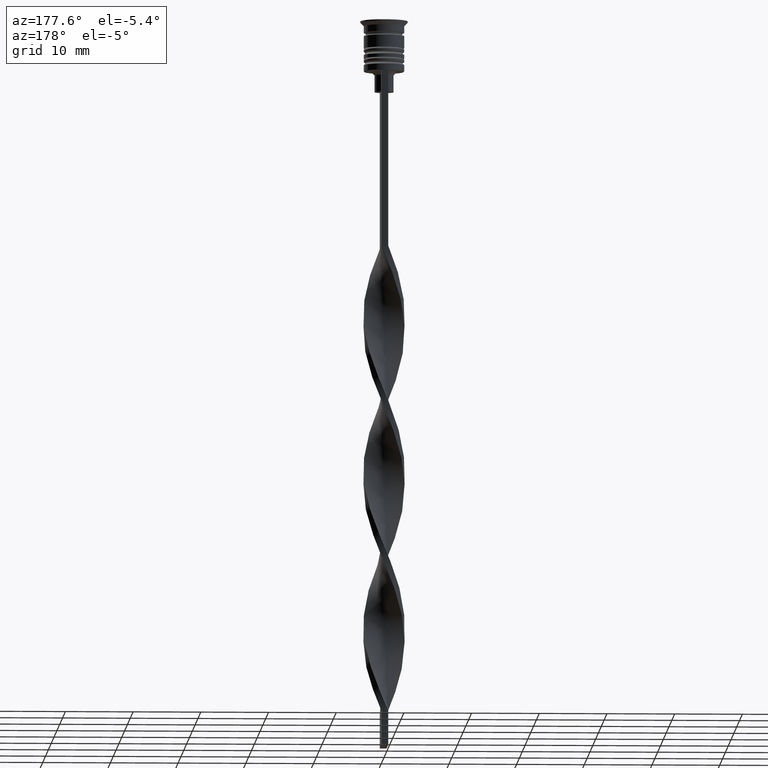
[diagram: clean part render]
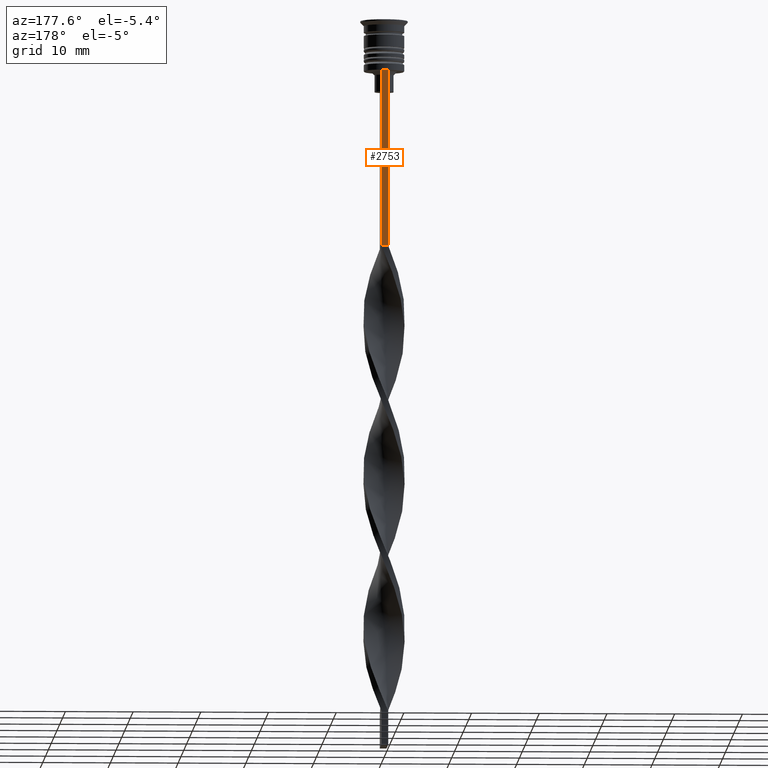
[diagram: same view with one face highlighted and labeled with its STEP entity id]
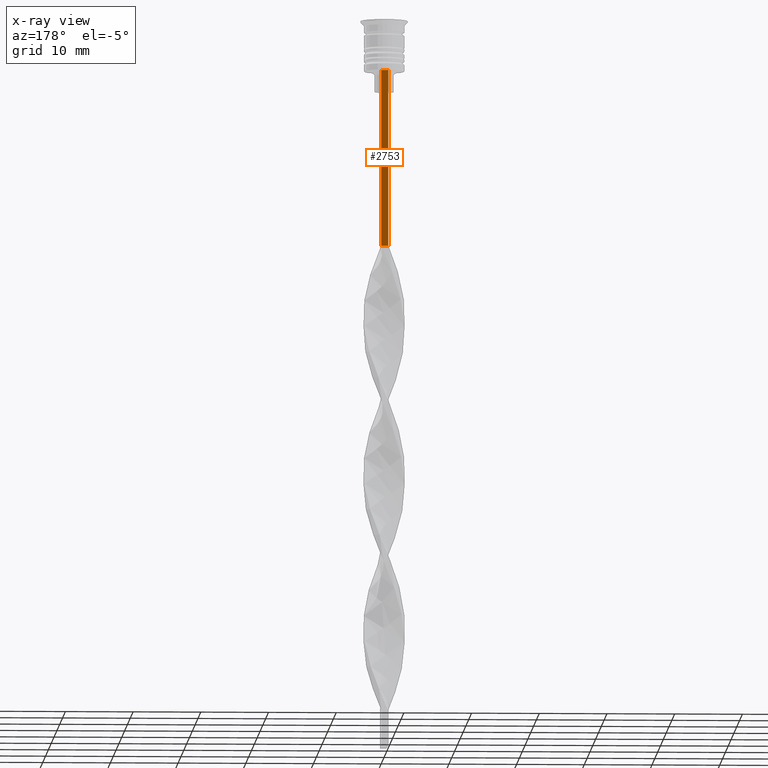
[diagram: x-ray of the same camera — body ghosted, the highlighted face saturated]
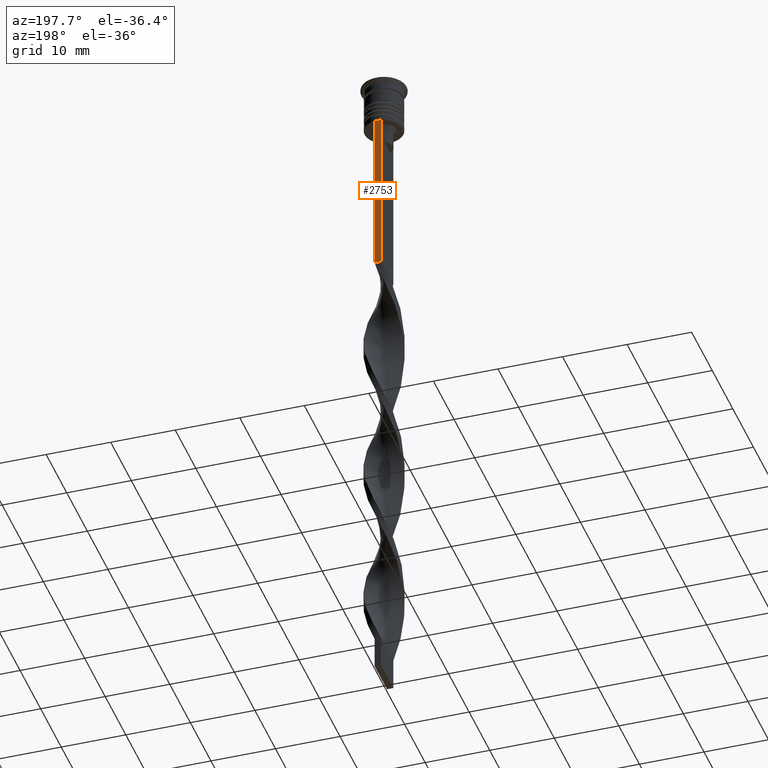
[diagram: same view with one face highlighted and labeled with its STEP entity id]
A machine part, auxiliary view. The second image highlights one B-rep face of the part: STEP entity #2753.
The next image is the same camera in x-ray: the body ghosted, the highlighted face saturated — about 0% of this face is hidden behind the body in this view.
A second angle (auxiliary view) of the same face is appended — the face is thin or edge-on in the first view.
In plain terms, the highlighted planar face has unit normal (0, -1, -0).
Its self-contained STEP definition (entity closure, byte-faithful):
#29 = PLANE ( 'NONE',  #3068 ) ;
#193 = EDGE_CURVE ( 'NONE', #2103, #3303, #812, .T. ) ;
#416 = LINE ( 'NONE', #1432, #790 ) ;
#544 = CARTESIAN_POINT ( 'NONE',  ( 0.4999999999999998890, 3.000000000000000000, -33.50000000000000000 ) ) ;
#766 = EDGE_LOOP ( 'NONE', ( #1910, #1971, #2552, #2362 ) ) ;
#790 = VECTOR ( 'NONE', #2521, 1000.000000000000000 ) ;
#799 = DIRECTION ( 'NONE',  ( 0.000000000000000000, -1.000000000000000000, -0.000000000000000000 ) ) ;
#812 = LINE ( 'NONE', #828, #3117 ) ;
#828 = CARTESIAN_POINT ( 'NONE',  ( -0.5000000000000001110, 3.000000000000000000, -1.417237469701779329 ) ) ;
#1095 = CARTESIAN_POINT ( 'NONE',  ( 0.4999999999999998890, 3.000000000000000000, -7.500000000000000000 ) ) ;
#1123 = CARTESIAN_POINT ( 'NONE',  ( -0.5000000000000001110, 3.000000000000000000, -7.500000000000000000 ) ) ;
#1124 = VECTOR ( 'NONE', #3237, 1000.000000000000000 ) ;
#1432 = CARTESIAN_POINT ( 'NONE',  ( 0.4999999999999998890, 3.000000000000000000, -33.50000000000000000 ) ) ;
#1601 = FACE_OUTER_BOUND ( 'NONE', #766, .T. ) ;
#1635 = LINE ( 'NONE', #1095, #1124 ) ;
#1781 = LINE ( 'NONE', #2517, #3417 ) ;
#1818 = EDGE_CURVE ( 'NONE', #2801, #3303, #416, .T. ) ;
#1875 = DIRECTION ( 'NONE',  ( 0.000000000000000000, 0.000000000000000000, -1.000000000000000000 ) ) ;
#1910 = ORIENTED_EDGE ( 'NONE', *, *, #193, .F. ) ;
#1971 = ORIENTED_EDGE ( 'NONE', *, *, #2734, .T. ) ;
#2103 = VERTEX_POINT ( 'NONE', #1123 ) ;
#2122 = CARTESIAN_POINT ( 'NONE',  ( 0.4999999999999998890, 3.000000000000000000, -1.417237469701779329 ) ) ;
#2362 = ORIENTED_EDGE ( 'NONE', *, *, #1818, .T. ) ;
#2517 = CARTESIAN_POINT ( 'NONE',  ( 0.4999999999999998890, 3.000000000000000000, -1.417237469701779329 ) ) ;
#2521 = DIRECTION ( 'NONE',  ( -1.000000000000000000, 0.000000000000000000, 0.000000000000000000 ) ) ;
#2552 = ORIENTED_EDGE ( 'NONE', *, *, #3028, .T. ) ;
#2660 = CARTESIAN_POINT ( 'NONE',  ( 0.4999999999999998890, 3.000000000000000000, -7.500000000000000000 ) ) ;
#2734 = EDGE_CURVE ( 'NONE', #2103, #2756, #1635, .T. ) ;
#2753 = ADVANCED_FACE ( 'NONE', ( #1601 ), #29, .F. ) ;
#2756 = VERTEX_POINT ( 'NONE', #2660 ) ;
#2789 = DIRECTION ( 'NONE',  ( 0.000000000000000000, 0.000000000000000000, -1.000000000000000000 ) ) ;
#2801 = VERTEX_POINT ( 'NONE', #544 ) ;
#3028 = EDGE_CURVE ( 'NONE', #2756, #2801, #1781, .T. ) ;
#3068 = AXIS2_PLACEMENT_3D ( 'NONE', #2122, #799, #3202 ) ;
#3117 = VECTOR ( 'NONE', #1875, 1000.000000000000000 ) ;
#3202 = DIRECTION ( 'NONE',  ( 0.000000000000000000, 0.000000000000000000, -1.000000000000000000 ) ) ;
#3237 = DIRECTION ( 'NONE',  ( 1.000000000000000000, 0.000000000000000000, 0.000000000000000000 ) ) ;
#3303 = VERTEX_POINT ( 'NONE', #3343 ) ;
#3343 = CARTESIAN_POINT ( 'NONE',  ( -0.5000000000000001110, 3.000000000000000000, -33.50000000000000000 ) ) ;
#3417 = VECTOR ( 'NONE', #2789, 1000.000000000000000 ) ;